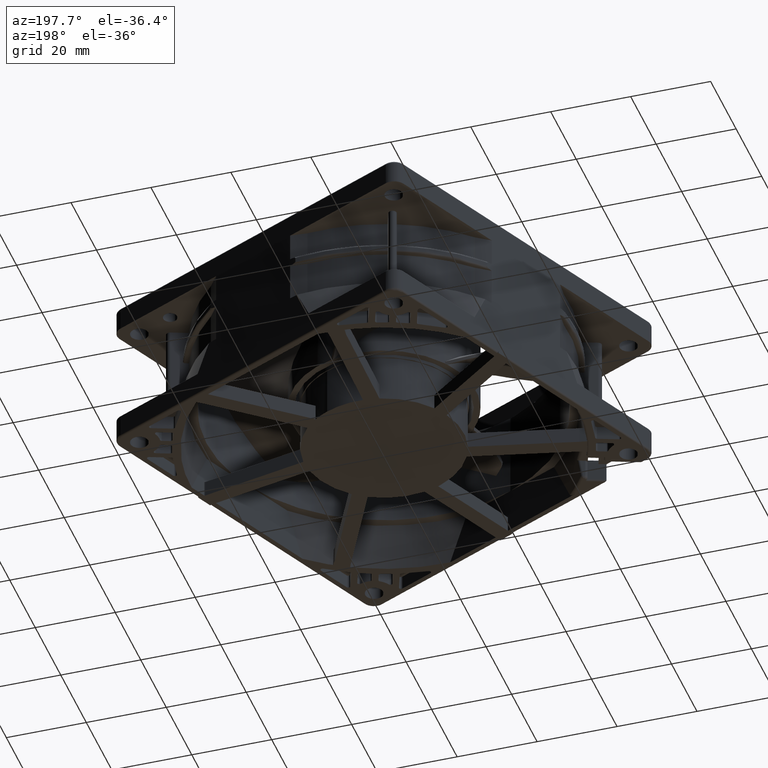
[diagram: clean part render]
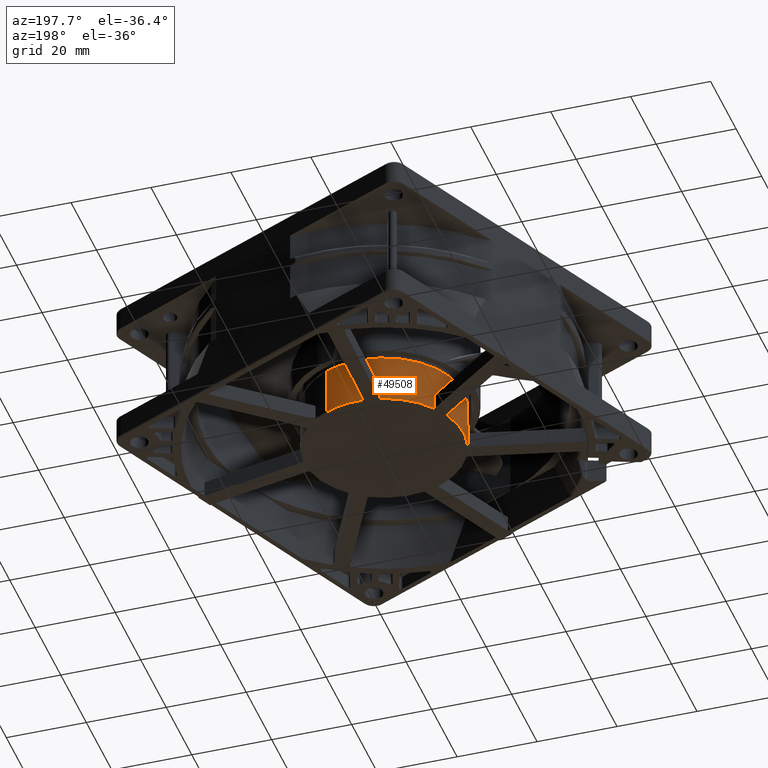
[diagram: same view with one face highlighted and labeled with its STEP entity id]
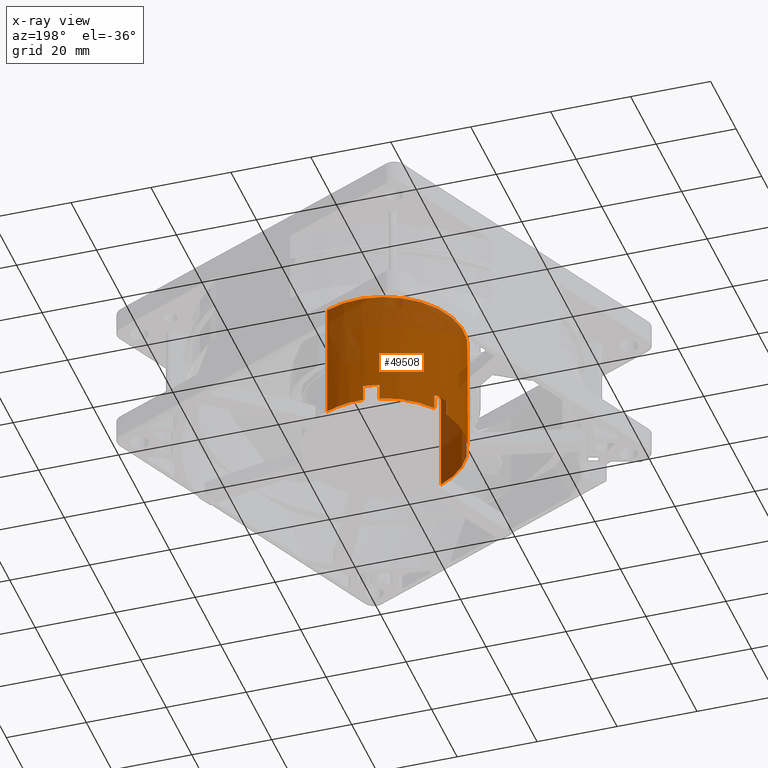
[diagram: x-ray of the same camera — body ghosted, the highlighted face saturated]
A machine part, auxiliary view. The second image highlights one B-rep face of the part: STEP entity #49508.
The next image is the same camera in x-ray: the body ghosted, the highlighted face saturated — about 32% of this face is hidden behind the body in this view.
In plain terms, the highlighted cylindrical surface (partial cylindrical patch) has radius 20 mm, axis along (0, 0, -1).
Its self-contained STEP definition (entity closure, byte-faithful):
#1055 = CIRCLE ( 'NONE', #59221, 20.00000000000000000 ) ;
#1276 = CARTESIAN_POINT ( 'NONE',  ( 20.00000000000000000, 2.449293598294706500E-015, -10.30000000000000100 ) ) ;
#1756 = CYLINDRICAL_SURFACE ( 'NONE', #21640, 20.00000000000000000 ) ;
#1761 = VERTEX_POINT ( 'NONE', #33719 ) ;
#2707 = CARTESIAN_POINT ( 'NONE',  ( 0.0000000000000000000, 0.0000000000000000000, -6.299999999999999800 ) ) ;
#2722 = VERTEX_POINT ( 'NONE', #3802 ) ;
#3064 = LINE ( 'NONE', #34354, #48030 ) ;
#3070 = DIRECTION ( 'NONE',  ( -1.000000000000000000, 0.0000000000000000000, 0.0000000000000000000 ) ) ;
#3349 = DIRECTION ( 'NONE',  ( 0.0000000000000000000, 0.0000000000000000000, -1.000000000000000000 ) ) ;
#3567 = CARTESIAN_POINT ( 'NONE',  ( 20.00000000000000000, 2.449293598294706500E-015, 19.69999999999999900 ) ) ;
#3802 = CARTESIAN_POINT ( 'NONE',  ( 15.41121272773830400, 12.74733392754724000, -6.299999999999999800 ) ) ;
#3936 = ORIENTED_EDGE ( 'NONE', *, *, #45828, .F. ) ;
#4391 = CARTESIAN_POINT ( 'NONE',  ( -14.26531339189003200, 14.01787551061725300, -6.299999999999999800 ) ) ;
#4697 = ORIENTED_EDGE ( 'NONE', *, *, #64779, .T. ) ;
#4791 = ORIENTED_EDGE ( 'NONE', *, *, #25776, .T. ) ;
#4790 = CARTESIAN_POINT ( 'NONE',  ( 16.40389850167348800, 11.47030848554314300, -6.299999999999999800 ) ) ;
#4843 = EDGE_CURVE ( 'NONE', #7289, #38652, #54429, .T. ) ;
#5341 = AXIS2_PLACEMENT_3D ( 'NONE', #27491, #43035, #22228 ) ;
#5730 = EDGE_CURVE ( 'NONE', #56460, #1761, #64680, .T. ) ;
#5838 = VECTOR ( 'NONE', #15094, 1000.000000000000000 ) ;
#6147 = VERTEX_POINT ( 'NONE', #38528 ) ;
#6421 = VERTEX_POINT ( 'NONE', #56825 ) ;
#7289 = VERTEX_POINT ( 'NONE', #15648 ) ;
#7436 = EDGE_CURVE ( 'NONE', #1761, #25585, #40958, .T. ) ;
#7446 = CARTESIAN_POINT ( 'NONE',  ( -13.13864269392031600, 15.07899426889918200, -6.299999999999999800 ) ) ;
#7824 = ORIENTED_EDGE ( 'NONE', *, *, #9045, .F. ) ;
#8179 = DIRECTION ( 'NONE',  ( -1.000000000000000000, 0.0000000000000000000, 0.0000000000000000000 ) ) ;
#8987 = CARTESIAN_POINT ( 'NONE',  ( 0.0000000000000000000, 0.0000000000000000000, -10.30000000000000100 ) ) ;
#9045 = EDGE_CURVE ( 'NONE', #50829, #40806, #38478, .T. ) ;
#9404 = ORIENTED_EDGE ( 'NONE', *, *, #58276, .T. ) ;
#9751 = CARTESIAN_POINT ( 'NONE',  ( -15.85704910144397300, 12.18827279783296400, -6.299999999999999800 ) ) ;
#10101 = CARTESIAN_POINT ( 'NONE',  ( 2.065338971396439800, 19.89307354164336100, -6.299999999999999800 ) ) ;
#10866 = AXIS2_PLACEMENT_3D ( 'NONE', #61834, #11772, #37526 ) ;
#10928 = DIRECTION ( 'NONE',  ( -1.000000000000000000, 0.0000000000000000000, 0.0000000000000000000 ) ) ;
#11609 = DIRECTION ( 'NONE',  ( 0.0000000000000000000, 0.0000000000000000000, -1.000000000000000000 ) ) ;
#11772 = DIRECTION ( 'NONE',  ( 0.0000000000000000000, 0.0000000000000000000, -1.000000000000000000 ) ) ;
#11873 = ORIENTED_EDGE ( 'NONE', *, *, #4843, .F. ) ;
#12466 = VERTEX_POINT ( 'NONE', #39331 ) ;
#12474 = CARTESIAN_POINT ( 'NONE',  ( -20.00000000000000000, 0.0000000000000000000, 19.69999999999999900 ) ) ;
#12848 = CARTESIAN_POINT ( 'NONE',  ( -0.3575330120689597100, 19.99680399827134300, -10.30000000000000100 ) ) ;
#14107 = DIRECTION ( 'NONE',  ( 0.0000000000000000000, 0.0000000000000000000, -1.000000000000000000 ) ) ;
#14270 = CARTESIAN_POINT ( 'NONE',  ( -20.00000000000000000, 0.0000000000000000000, 19.69999999999999900 ) ) ;
#15094 = DIRECTION ( 'NONE',  ( 0.0000000000000000000, 0.0000000000000000000, -1.000000000000000000 ) ) ;
#15587 = VERTEX_POINT ( 'NONE', #3567 ) ;
#15627 = CARTESIAN_POINT ( 'NONE',  ( -14.26531339189003200, 14.01787551061725300, -6.299999999999999800 ) ) ;
#15648 = CARTESIAN_POINT ( 'NONE',  ( -0.3575330120689597100, 19.99680399827134300, -6.299999999999999800 ) ) ;
#15852 = VERTEX_POINT ( 'NONE', #61687 ) ;
#16086 = EDGE_CURVE ( 'NONE', #6421, #56765, #55114, .T. ) ;
#17065 = ORIENTED_EDGE ( 'NONE', *, *, #18384, .F. ) ;
#17112 = DIRECTION ( 'NONE',  ( 0.0000000000000000000, 0.0000000000000000000, -1.000000000000000000 ) ) ;
#17190 = DIRECTION ( 'NONE',  ( 0.0000000000000000000, 0.0000000000000000000, -1.000000000000000000 ) ) ;
#17277 = DIRECTION ( 'NONE',  ( 0.0000000000000000000, 0.0000000000000000000, -1.000000000000000000 ) ) ;
#17301 = VECTOR ( 'NONE', #40125, 1000.000000000000000 ) ;
#17942 = VECTOR ( 'NONE', #17277, 1000.000000000000000 ) ;
#18384 = EDGE_CURVE ( 'NONE', #6147, #60652, #49422, .T. ) ;
#18682 = AXIS2_PLACEMENT_3D ( 'NONE', #8987, #63658, #3070 ) ;
#20321 = LINE ( 'NONE', #9751, #46506 ) ;
#20477 = VECTOR ( 'NONE', #54982, 1000.000000000000000 ) ;
#21545 = CARTESIAN_POINT ( 'NONE',  ( 17.62455544354905300, 9.453837602649278100, -6.299999999999999800 ) ) ;
#21640 = AXIS2_PLACEMENT_3D ( 'NONE', #31568, #46432, #10928 ) ;
#22228 = DIRECTION ( 'NONE',  ( -1.000000000000000000, 0.0000000000000000000, 0.0000000000000000000 ) ) ;
#22526 = AXIS2_PLACEMENT_3D ( 'NONE', #29646, #65005, #34727 ) ;
#22925 = LINE ( 'NONE', #12474, #55355 ) ;
#23120 = VECTOR ( 'NONE', #17190, 1000.000000000000000 ) ;
#24307 = LINE ( 'NONE', #64014, #20477 ) ;
#24491 = CARTESIAN_POINT ( 'NONE',  ( 16.84074896393531500, 10.78838145106631400, -6.299999999999999800 ) ) ;
#25246 = DIRECTION ( 'NONE',  ( 0.0000000000000000000, 0.0000000000000000000, -1.000000000000000000 ) ) ;
#25585 = VERTEX_POINT ( 'NONE', #1276 ) ;
#25776 = EDGE_CURVE ( 'NONE', #2722, #60652, #24307, .T. ) ;
#25992 = B_SPLINE_CURVE_WITH_KNOTS ( 'NONE', 3,
 ( #49977, #29607, #4790, #24491 ),
 .UNSPECIFIED., .F., .F.,
 ( 4, 4 ),
 ( 0.0000000000000000000, 1.000000000000000000 ),
 .UNSPECIFIED. ) ;
#27491 = CARTESIAN_POINT ( 'NONE',  ( 0.0000000000000000000, 0.0000000000000000000, -10.30000000000000100 ) ) ;
#27793 = AXIS2_PLACEMENT_3D ( 'NONE', #2707, #3349, #8179 ) ;
#28914 = EDGE_CURVE ( 'NONE', #50005, #50829, #1055, .T. ) ;
#29607 = CARTESIAN_POINT ( 'NONE',  ( 15.92738642294115300, 12.12329264437011700, -6.299999999999999800 ) ) ;
#29646 = CARTESIAN_POINT ( 'NONE',  ( 0.0000000000000000000, 0.0000000000000000000, 19.69999999999999900 ) ) ;
#30348 = DIRECTION ( 'NONE',  ( -1.000000000000000000, 0.0000000000000000000, 0.0000000000000000000 ) ) ;
#30524 = ORIENTED_EDGE ( 'NONE', *, *, #30819, .F. ) ;
#30606 = CARTESIAN_POINT ( 'NONE',  ( 17.62455544354905600, 9.453837602649278100, -6.299999999999999800 ) ) ;
#30819 = EDGE_CURVE ( 'NONE', #56673, #6421, #22925, .T. ) ;
#31568 = CARTESIAN_POINT ( 'NONE',  ( 0.0000000000000000000, 0.0000000000000000000, 19.69999999999999900 ) ) ;
#31899 = DIRECTION ( 'NONE',  ( -1.000000000000000000, 0.0000000000000000000, 0.0000000000000000000 ) ) ;
#31992 = ORIENTED_EDGE ( 'NONE', *, *, #34585, .T. ) ;
#33466 = ORIENTED_EDGE ( 'NONE', *, *, #5730, .F. ) ;
#33638 = EDGE_CURVE ( 'NONE', #40806, #33858, #57596, .T. ) ;
#33719 = CARTESIAN_POINT ( 'NONE',  ( 17.62455544354906000, 9.453837602649278100, -10.30000000000000100 ) ) ;
#33858 = VERTEX_POINT ( 'NONE', #12848 ) ;
#34228 = CIRCLE ( 'NONE', #51727, 20.00000000000000000 ) ;
#34354 = CARTESIAN_POINT ( 'NONE',  ( 20.00000000000000000, 2.449293598294706500E-015, 19.69999999999999900 ) ) ;
#34585 = EDGE_CURVE ( 'NONE', #56673, #15587, #40140, .T. ) ;
#34727 = DIRECTION ( 'NONE',  ( -1.000000000000000000, 0.0000000000000000000, 0.0000000000000000000 ) ) ;
#35336 = ORIENTED_EDGE ( 'NONE', *, *, #28914, .F. ) ;
#37526 = DIRECTION ( 'NONE',  ( -1.000000000000000000, 0.0000000000000000000, 0.0000000000000000000 ) ) ;
#37543 = CARTESIAN_POINT ( 'NONE',  ( -13.13864269392031400, 15.07899426889918000, -6.299999999999999800 ) ) ;
#38478 = LINE ( 'NONE', #7446, #17942 ) ;
#38528 = CARTESIAN_POINT ( 'NONE',  ( 3.597422713455342300, 19.67380364395038900, -10.30000000000000100 ) ) ;
#38613 = AXIS2_PLACEMENT_3D ( 'NONE', #41432, #25246, #30348 ) ;
#38652 = VERTEX_POINT ( 'NONE', #63561 ) ;
#39110 = CARTESIAN_POINT ( 'NONE',  ( 3.597422713455341400, 19.67380364395038900, -6.299999999999999800 ) ) ;
#39310 = DIRECTION ( 'NONE',  ( -1.000000000000000000, 0.0000000000000000000, 0.0000000000000000000 ) ) ;
#39331 = CARTESIAN_POINT ( 'NONE',  ( 16.84074896393531500, 10.78838145106631400, -6.299999999999999800 ) ) ;
#40125 = DIRECTION ( 'NONE',  ( 0.0000000000000000000, 0.0000000000000000000, -1.000000000000000000 ) ) ;
#40140 = CIRCLE ( 'NONE', #22526, 20.00000000000000000 ) ;
#40258 = CARTESIAN_POINT ( 'NONE',  ( -0.3575330120689597100, 19.99680399827134300, -6.299999999999999800 ) ) ;
#40730 = VERTEX_POINT ( 'NONE', #39110 ) ;
#40806 = VERTEX_POINT ( 'NONE', #50387 ) ;
#40958 = CIRCLE ( 'NONE', #5341, 20.00000000000000000 ) ;
#41432 = CARTESIAN_POINT ( 'NONE',  ( 0.0000000000000000000, 0.0000000000000000000, -10.30000000000000100 ) ) ;
#41485 = ORIENTED_EDGE ( 'NONE', *, *, #59212, .T. ) ;
#42466 = ORIENTED_EDGE ( 'NONE', *, *, #33638, .F. ) ;
#43035 = DIRECTION ( 'NONE',  ( 0.0000000000000000000, 0.0000000000000000000, -1.000000000000000000 ) ) ;
#43063 = ORIENTED_EDGE ( 'NONE', *, *, #7436, .F. ) ;
#43251 = B_SPLINE_CURVE_WITH_KNOTS ( 'NONE', 3,
 ( #44297, #64985, #59065, #4391 ),
 .UNSPECIFIED., .F., .F.,
 ( 4, 4 ),
 ( 0.0000000000000000000, 1.000000000000000000 ),
 .UNSPECIFIED. ) ;
#44297 = CARTESIAN_POINT ( 'NONE',  ( -15.85704910144397300, 12.18827279783296200, -6.299999999999999800 ) ) ;
#45131 = EDGE_CURVE ( 'NONE', #15852, #50005, #43251, .T. ) ;
#45368 = CARTESIAN_POINT ( 'NONE',  ( -0.3575330120689588200, 19.99680399827134600, -6.299999999999999800 ) ) ;
#45828 = EDGE_CURVE ( 'NONE', #12466, #56460, #34228, .T. ) ;
#45839 = ORIENTED_EDGE ( 'NONE', *, *, #63835, .F. ) ;
#46114 = CARTESIAN_POINT ( 'NONE',  ( 15.41121272773830400, 12.74733392754724200, -10.30000000000000100 ) ) ;
#46432 = DIRECTION ( 'NONE',  ( 0.0000000000000000000, 0.0000000000000000000, -1.000000000000000000 ) ) ;
#46506 = VECTOR ( 'NONE', #14107, 1000.000000000000000 ) ;
#48030 = VECTOR ( 'NONE', #54285, 1000.000000000000000 ) ;
#48419 = EDGE_LOOP ( 'NONE', ( #31992, #41485, #43063, #33466, #3936, #53445, #4791, #17065, #45839, #49195, #11873, #4697, #42466, #7824, #35336, #63816, #9404, #57937, #30524 ) ) ;
#49195 = ORIENTED_EDGE ( 'NONE', *, *, #62300, .F. ) ;
#49300 = CARTESIAN_POINT ( 'NONE',  ( 0.0000000000000000000, 0.0000000000000000000, -6.299999999999999800 ) ) ;
#49422 = CIRCLE ( 'NONE', #38613, 20.00000000000000000 ) ;
#49508 = ADVANCED_FACE ( 'NONE', ( #49871 ), #1756, .T. ) ;
#49871 = FACE_OUTER_BOUND ( 'NONE', #48419, .T. ) ;
#49977 = CARTESIAN_POINT ( 'NONE',  ( 15.41121272773830400, 12.74733392754724000, -6.299999999999999800 ) ) ;
#50005 = VERTEX_POINT ( 'NONE', #15627 ) ;
#50387 = CARTESIAN_POINT ( 'NONE',  ( -13.13864269392031600, 15.07899426889918500, -10.30000000000000100 ) ) ;
#50588 = CARTESIAN_POINT ( 'NONE',  ( 3.597422713455341800, 19.67380364395038900, -6.299999999999999800 ) ) ;
#50688 = CARTESIAN_POINT ( 'NONE',  ( 1.259815138926461600, 19.97670464872724900, -6.299999999999999800 ) ) ;
#50829 = VERTEX_POINT ( 'NONE', #37543 ) ;
#51370 = CARTESIAN_POINT ( 'NONE',  ( -15.85704910144397700, 12.18827279783296500, -10.30000000000000100 ) ) ;
#51727 = AXIS2_PLACEMENT_3D ( 'NONE', #49300, #54560, #39310 ) ;
#53445 = ORIENTED_EDGE ( 'NONE', *, *, #55571, .F. ) ;
#54285 = DIRECTION ( 'NONE',  ( 0.0000000000000000000, 0.0000000000000000000, -1.000000000000000000 ) ) ;
#54429 = B_SPLINE_CURVE_WITH_KNOTS ( 'NONE', 3,
 ( #40258, #65197, #50688, #10101 ),
 .UNSPECIFIED., .F., .F.,
 ( 4, 4 ),
 ( 0.0000000000000000000, 1.000000000000000000 ),
 .UNSPECIFIED. ) ;
#54560 = DIRECTION ( 'NONE',  ( 0.0000000000000000000, 0.0000000000000000000, -1.000000000000000000 ) ) ;
#54791 = LINE ( 'NONE', #50588, #23120 ) ;
#54982 = DIRECTION ( 'NONE',  ( 0.0000000000000000000, 0.0000000000000000000, -1.000000000000000000 ) ) ;
#55114 = CIRCLE ( 'NONE', #18682, 20.00000000000000000 ) ;
#55355 = VECTOR ( 'NONE', #11609, 1000.000000000000000 ) ;
#55571 = EDGE_CURVE ( 'NONE', #2722, #12466, #25992, .T. ) ;
#56460 = VERTEX_POINT ( 'NONE', #21545 ) ;
#56673 = VERTEX_POINT ( 'NONE', #14270 ) ;
#56765 = VERTEX_POINT ( 'NONE', #51370 ) ;
#56825 = CARTESIAN_POINT ( 'NONE',  ( -20.00000000000000000, 0.0000000000000000000, -10.30000000000000100 ) ) ;
#57107 = CARTESIAN_POINT ( 'NONE',  ( 0.0000000000000000000, 0.0000000000000000000, -6.299999999999999800 ) ) ;
#57596 = CIRCLE ( 'NONE', #10866, 20.00000000000000000 ) ;
#57937 = ORIENTED_EDGE ( 'NONE', *, *, #16086, .F. ) ;
#58276 = EDGE_CURVE ( 'NONE', #15852, #56765, #20321, .T. ) ;
#58660 = LINE ( 'NONE', #45368, #5838 ) ;
#59065 = CARTESIAN_POINT ( 'NONE',  ( -14.83293471901034300, 13.44023476090744000, -6.299999999999999800 ) ) ;
#59212 = EDGE_CURVE ( 'NONE', #15587, #25585, #3064, .T. ) ;
#59221 = AXIS2_PLACEMENT_3D ( 'NONE', #57107, #17112, #31899 ) ;
#60652 = VERTEX_POINT ( 'NONE', #46114 ) ;
#61687 = CARTESIAN_POINT ( 'NONE',  ( -15.85704910144397300, 12.18827279783296200, -6.299999999999999800 ) ) ;
#61834 = CARTESIAN_POINT ( 'NONE',  ( 0.0000000000000000000, 0.0000000000000000000, -10.30000000000000100 ) ) ;
#61983 = CIRCLE ( 'NONE', #27793, 20.00000000000000000 ) ;
#62300 = EDGE_CURVE ( 'NONE', #38652, #40730, #61983, .T. ) ;
#63561 = CARTESIAN_POINT ( 'NONE',  ( 2.065338971396439800, 19.89307354164336100, -6.299999999999999800 ) ) ;
#63658 = DIRECTION ( 'NONE',  ( 0.0000000000000000000, 0.0000000000000000000, -1.000000000000000000 ) ) ;
#63816 = ORIENTED_EDGE ( 'NONE', *, *, #45131, .F. ) ;
#63835 = EDGE_CURVE ( 'NONE', #40730, #6147, #54791, .T. ) ;
#64014 = CARTESIAN_POINT ( 'NONE',  ( 15.41121272773830400, 12.74733392754724000, -6.299999999999999800 ) ) ;
#64680 = LINE ( 'NONE', #30606, #17301 ) ;
#64779 = EDGE_CURVE ( 'NONE', #7289, #33858, #58660, .T. ) ;
#64985 = CARTESIAN_POINT ( 'NONE',  ( -15.36351328886165900, 12.83036718997934100, -6.299999999999999800 ) ) ;
#65005 = DIRECTION ( 'NONE',  ( 0.0000000000000000000, 0.0000000000000000000, -1.000000000000000000 ) ) ;
#65197 = CARTESIAN_POINT ( 'NONE',  ( 0.4521911444379956300, 20.01128146760324700, -6.299999999999999800 ) ) ;